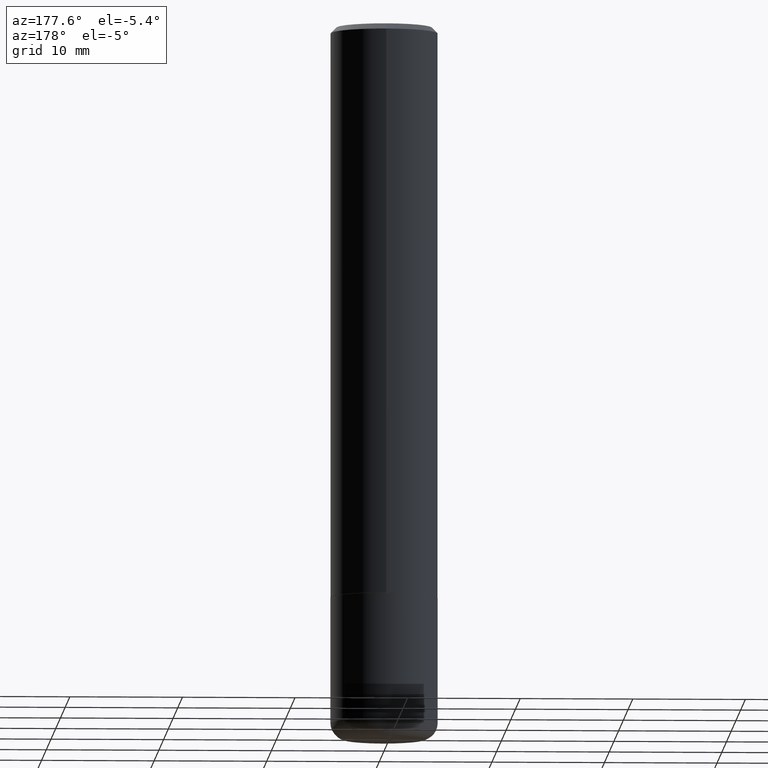
[diagram: clean part render]
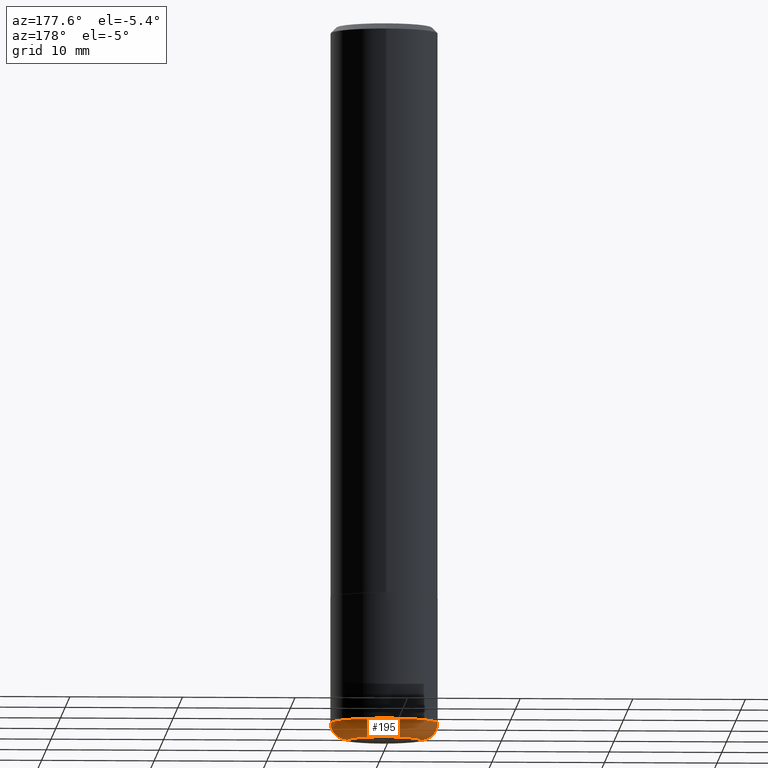
[diagram: same view with one face highlighted and labeled with its STEP entity id]
A machine part, auxiliary view. The second image highlights one B-rep face of the part: STEP entity #195.
In plain terms, the highlighted toroidal blend (fillet) surface has major radius 3.2385 mm and minor (blend) radius 1.524 mm.
Its self-contained STEP definition (entity closure, byte-faithful):
#4 = EDGE_CURVE ( 'NONE', #218, #31, #223, .T. ) ;
#13 = CARTESIAN_POINT ( 'NONE',  ( 0.1275000000000000022, -9.409542208182273423E-15, -2.440000000000000391 ) ) ;
#18 = DIRECTION ( 'NONE',  ( 1.000000000000000000, -6.982962677686260400E-15, 0.000000000000000000 ) ) ;
#19 = DIRECTION ( 'NONE',  ( -2.445468806185136597E-29, 3.491481338843145583E-15, 1.000000000000000000 ) ) ;
#22 = CARTESIAN_POINT ( 'NONE',  ( 5.966943887091733341E-29, -8.519214466777275048E-15, -2.440000000000000391 ) ) ;
#31 = VERTEX_POINT ( 'NONE', #169 ) ;
#33 = AXIS2_PLACEMENT_3D ( 'NONE', #13, #106, #124 ) ;
#41 = CARTESIAN_POINT ( 'NONE',  ( 6.113672015462842613E-29, -8.728703347107866520E-15, -2.500000000000000444 ) ) ;
#44 = DIRECTION ( 'NONE',  ( 1.000000000000000000, -6.982962677686263555E-15, 4.883557194083111780E-29 ) ) ;
#46 = VERTEX_POINT ( 'NONE', #108 ) ;
#75 = ORIENTED_EDGE ( 'NONE', *, *, #202, .F. ) ;
#76 = EDGE_CURVE ( 'NONE', #46, #218, #134, .T. ) ;
#89 = ORIENTED_EDGE ( 'NONE', *, *, #76, .T. ) ;
#98 = ORIENTED_EDGE ( 'NONE', *, *, #283, .F. ) ;
#106 = DIRECTION ( 'NONE',  ( -6.982962677686266711E-15, -1.000000000000000000, 3.491481338843145583E-15 ) ) ;
#108 = CARTESIAN_POINT ( 'NONE',  ( 0.1275000000000000022, -9.619031088512866473E-15, -2.500000000000000444 ) ) ;
#109 = CARTESIAN_POINT ( 'NONE',  ( -0.1275000000000000022, -7.613272478683147690E-15, -2.440000000000000391 ) ) ;
#122 = FACE_OUTER_BOUND ( 'NONE', #183, .T. ) ;
#124 = DIRECTION ( 'NONE',  ( 1.000000000000000000, -6.982962677686271444E-15, 0.000000000000000000 ) ) ;
#134 = CIRCLE ( 'NONE', #376, 0.1275000000000000022 ) ;
#141 = DIRECTION ( 'NONE',  ( 1.000000000000000000, -6.982962677686267499E-15, 0.000000000000000000 ) ) ;
#169 = CARTESIAN_POINT ( 'NONE',  ( -0.1875000000000001388, -7.186946837227087200E-15, -2.440000000000000391 ) ) ;
#176 = DIRECTION ( 'NONE',  ( -2.445468806185136597E-29, 3.491481338843145583E-15, 1.000000000000000000 ) ) ;
#183 = EDGE_LOOP ( 'NONE', ( #89, #284, #75, #98 ) ) ;
#189 = CARTESIAN_POINT ( 'NONE',  ( -0.1275000000000000022, -7.504854098120412392E-15, -2.500000000000000444 ) ) ;
#190 = VERTEX_POINT ( 'NONE', #198 ) ;
#195 = ADVANCED_FACE ( 'NONE', ( #122 ), #298, .T. ) ;
#198 = CARTESIAN_POINT ( 'NONE',  ( 0.1875000000000001388, -9.828519968843450056E-15, -2.440000000000000391 ) ) ;
#202 = EDGE_CURVE ( 'NONE', #190, #31, #328, .T. ) ;
#214 = AXIS2_PLACEMENT_3D ( 'NONE', #109, #295, #273 ) ;
#216 = CIRCLE ( 'NONE', #33, 0.06000000000000024758 ) ;
#218 = VERTEX_POINT ( 'NONE', #189 ) ;
#223 = CIRCLE ( 'NONE', #214, 0.06000000000000024758 ) ;
#238 = AXIS2_PLACEMENT_3D ( 'NONE', #22, #176, #44 ) ;
#273 = DIRECTION ( 'NONE',  ( -1.000000000000000000, 7.105427357600993970E-15, 0.000000000000000000 ) ) ;
#283 = EDGE_CURVE ( 'NONE', #46, #190, #216, .T. ) ;
#284 = ORIENTED_EDGE ( 'NONE', *, *, #4, .T. ) ;
#295 = DIRECTION ( 'NONE',  ( 7.105427357601001859E-15, 1.000000000000000000, -3.491481338843145583E-15 ) ) ;
#298 = TOROIDAL_SURFACE ( 'NONE', #238, 0.1275000000000000022, 0.06000000000000024758 ) ;
#328 = CIRCLE ( 'NONE', #405, 0.1875000000000000555 ) ;
#376 = AXIS2_PLACEMENT_3D ( 'NONE', #41, #19, #141 ) ;
#388 = CARTESIAN_POINT ( 'NONE',  ( 5.966943887091733341E-29, -8.519214466777275048E-15, -2.440000000000000391 ) ) ;
#405 = AXIS2_PLACEMENT_3D ( 'NONE', #388, #406, #18 ) ;
#406 = DIRECTION ( 'NONE',  ( -2.445468806185136597E-29, 3.491481338843145583E-15, 1.000000000000000000 ) ) ;